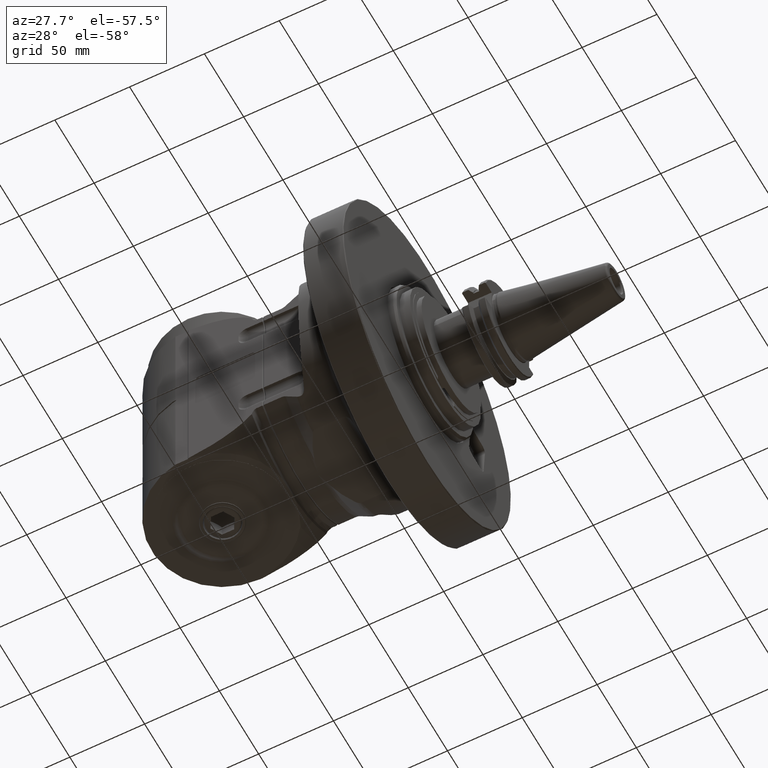
[diagram: clean part render]
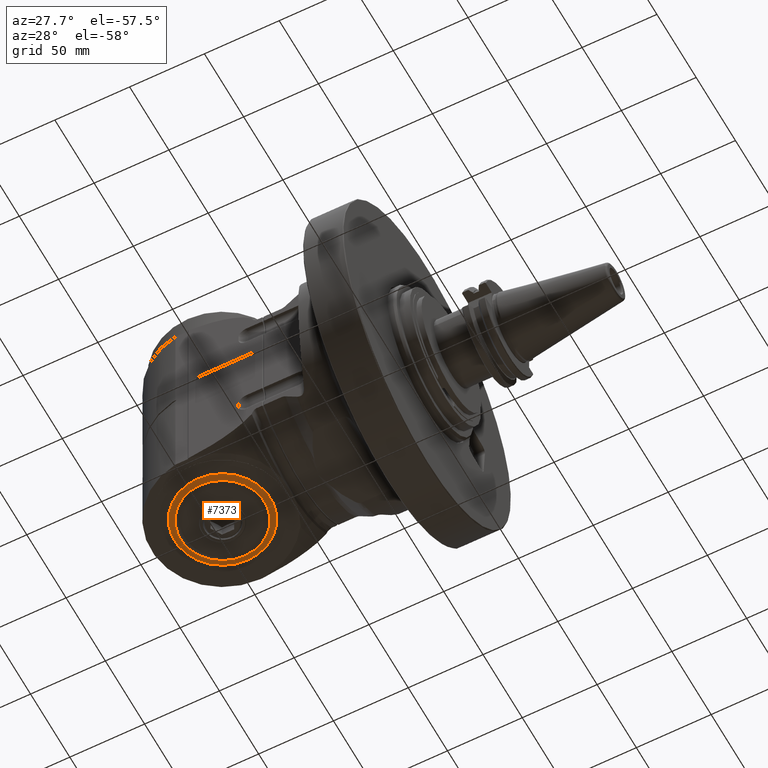
[diagram: same view with one face highlighted and labeled with its STEP entity id]
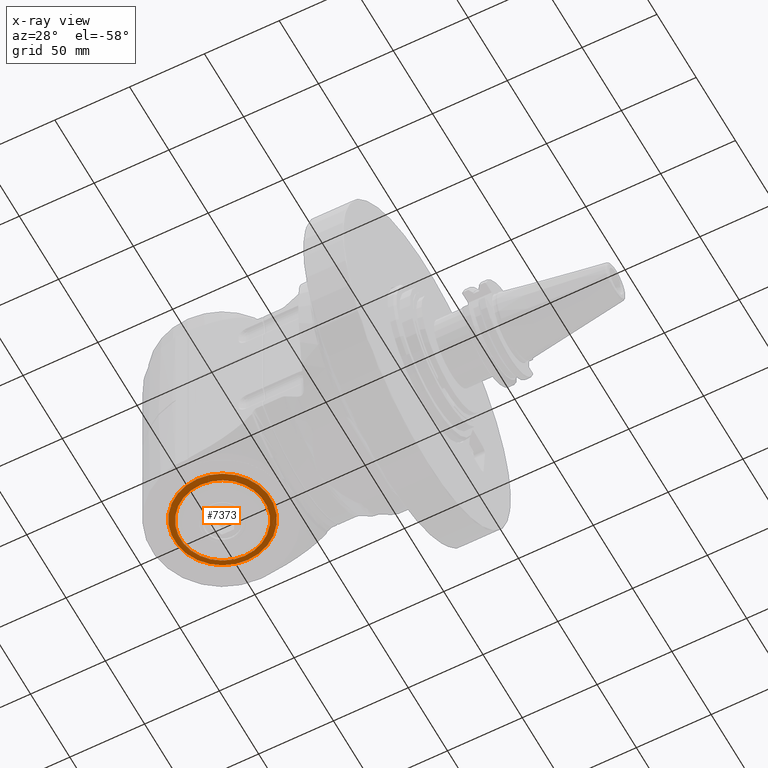
[diagram: x-ray of the same camera — body ghosted, the highlighted face saturated]
A machine part, auxiliary view. The second image highlights one B-rep face of the part: STEP entity #7373.
The next image is the same camera in x-ray: the body ghosted, the highlighted face saturated — about 0% of this face is hidden behind the body in this view.
In plain terms, the highlighted toroidal blend (fillet) surface has major radius 32.1436 mm and minor (blend) radius 8 mm.
Its self-contained STEP definition (entity closure, byte-faithful):
#54=TOROIDAL_SURFACE('',#7976,32.14359353945,8.);
#443=CIRCLE('',#7971,32.14359353945);
#446=CIRCLE('',#7977,8.);
#447=CIRCLE('',#7978,28.14359353945);
#953=FACE_OUTER_BOUND('',#1431,.T.);
#1431=EDGE_LOOP('',(#5166,#5167,#5168,#5169));
#3151=VERTEX_POINT('',#11608);
#3155=VERTEX_POINT('',#11625);
#3916=EDGE_CURVE('',#3151,#3151,#443,.T.);
#3922=EDGE_CURVE('',#3151,#3155,#446,.T.);
#3923=EDGE_CURVE('',#3155,#3155,#447,.T.);
#5166=ORIENTED_EDGE('',*,*,#3916,.F.);
#5167=ORIENTED_EDGE('',*,*,#3922,.T.);
#5168=ORIENTED_EDGE('',*,*,#3923,.T.);
#5169=ORIENTED_EDGE('',*,*,#3922,.F.);
#7373=ADVANCED_FACE('',(#953),#54,.F.);
#7971=AXIS2_PLACEMENT_3D('',#11609,#9073,#9074);
#7976=AXIS2_PLACEMENT_3D('',#11624,#9084,#9085);
#7977=AXIS2_PLACEMENT_3D('',#11626,#9086,#9087);
#7978=AXIS2_PLACEMENT_3D('',#11627,#9088,#9089);
#9073=DIRECTION('center_axis',(0.,-1.,-4.66071146748E-9));
#9074=DIRECTION('ref_axis',(0.,-4.66071146748E-9,1.));
#9084=DIRECTION('center_axis',(0.,-1.,-4.66071146748E-9));
#9085=DIRECTION('ref_axis',(0.,4.66071123281933E-9,-1.));
#9086=DIRECTION('center_axis',(1.,0.,0.));
#9087=DIRECTION('ref_axis',(0.,-4.66071145406968E-9,1.));
#9088=DIRECTION('center_axis',(0.,-1.,-4.66071146748E-9));
#9089=DIRECTION('ref_axis',(0.,-4.66071146748E-9,1.));
#11608=CARTESIAN_POINT('',(93.,70.499999850188,32.1435938680302));
#11609=CARTESIAN_POINT('Origin',(93.,70.5,3.285801766207E-7));
#11624=CARTESIAN_POINT('Origin',(93.,78.5,3.658658683606E-7));
#11625=CARTESIAN_POINT('',(93.,71.5717966385508,28.1435938730255));
#11626=CARTESIAN_POINT('Origin',(93.,78.499999850188,32.1435939053159));
#11627=CARTESIAN_POINT('Origin',(93.,71.57179676972,3.335755121162E-7));